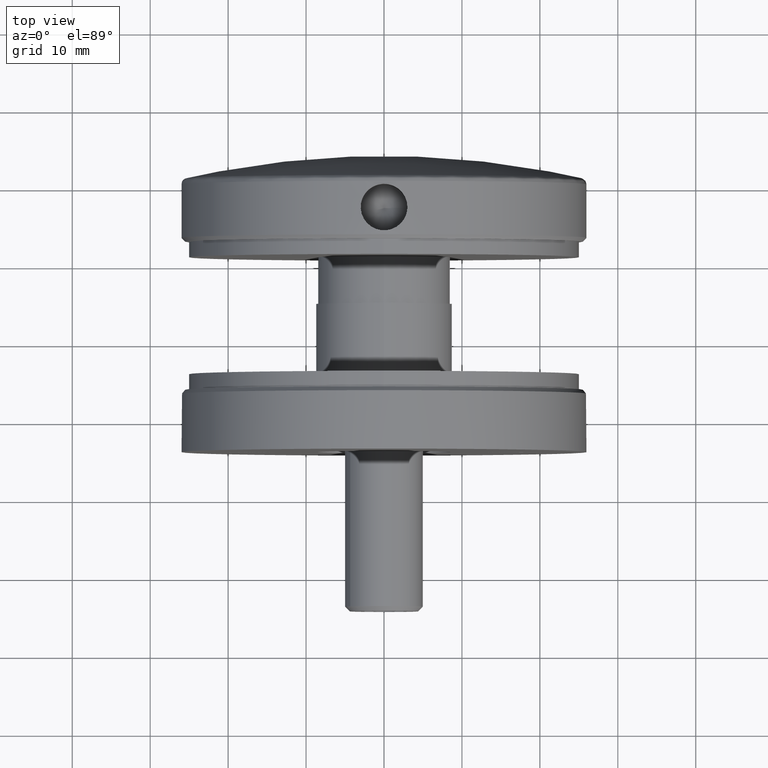
[diagram: clean part render]
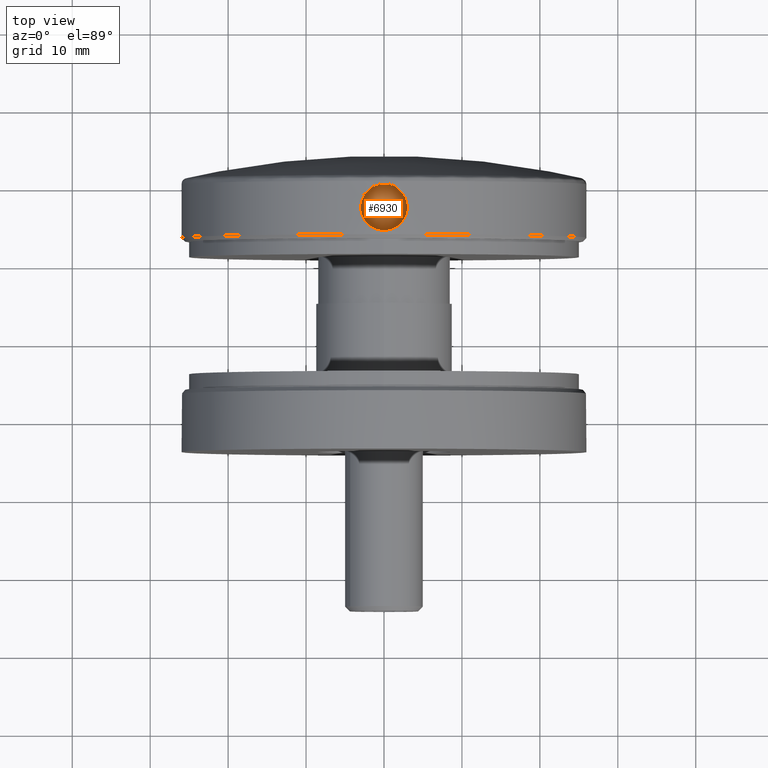
[diagram: same view with one face highlighted and labeled with its STEP entity id]
A machine part, top view. The second image highlights one B-rep face of the part: STEP entity #6930.
In plain terms, the highlighted conical surface has half-angle 59 deg.
Its self-contained STEP definition (entity closure, byte-faithful):
#148 = AXIS2_PLACEMENT_3D ( 'NONE', #8329, #5715, #18270 ) ;
#592 = CARTESIAN_POINT ( 'NONE',  ( 2.315716780447588709E-17, 11.99999999999999645, 19.50000000000000000 ) ) ;
#684 = VERTEX_POINT ( 'NONE', #12836 ) ;
#3385 = DIRECTION ( 'NONE',  ( -0.000000000000000000, -0.000000000000000000, 1.000000000000000000 ) ) ;
#5715 = DIRECTION ( 'NONE',  ( -0.000000000000000000, -0.000000000000000000, 1.000000000000000000 ) ) ;
#6204 = FACE_OUTER_BOUND ( 'NONE', #7551, .T. ) ;
#6930 = ADVANCED_FACE ( 'NONE', ( #6204 ), #16585, .F. ) ;
#7551 = EDGE_LOOP ( 'NONE', ( #10103 ) ) ;
#8329 = CARTESIAN_POINT ( 'NONE',  ( 2.315716780447588709E-17, 11.99999999999999645, 19.50000000000000000 ) ) ;
#10103 = ORIENTED_EDGE ( 'NONE', *, *, #12546, .T. ) ;
#11779 = AXIS2_PLACEMENT_3D ( 'NONE', #592, #3385, #13281 ) ;
#12546 = EDGE_CURVE ( 'NONE', #684, #684, #14651, .T. ) ;
#12836 = CARTESIAN_POINT ( 'NONE',  ( 2.999999999999996003, 11.99999999999999645, 19.50000000000000000 ) ) ;
#13281 = DIRECTION ( 'NONE',  ( 1.000000000000000000, 0.000000000000000000, 0.000000000000000000 ) ) ;
#14651 = CIRCLE ( 'NONE', #148, 2.999999999999996003 ) ;
#16585 = CONICAL_SURFACE ( 'NONE', #11779, 2.999999999999996003, 1.029744258676653867 ) ;
#18270 = DIRECTION ( 'NONE',  ( 1.000000000000000000, 0.000000000000000000, 0.000000000000000000 ) ) ;